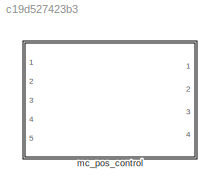
MODEL slx_c19d527423b3
KIND model
CONFIG AbsTol = auto
CONFIG EnableMultiTasking = off
CONFIG FixedStep = auto
CONFIG MaxStep = auto
CONFIG MinStep = auto
CONFIG RelTol = 1e-3
CONFIG SampleTimeConstraint = Unconstrained
CONFIG SolverName = VariableStepAuto
CONFIG StartTime = 0.0
CONFIG StopTime = 10.0
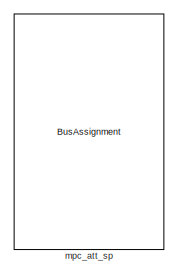
[diagram: mc_pos_control - part 1/6, top center region]
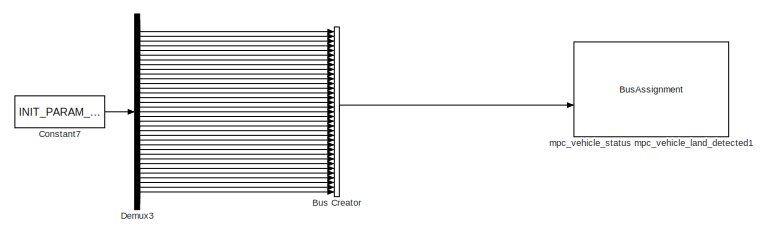
[diagram: mc_pos_control - part 2/6, middle left region]
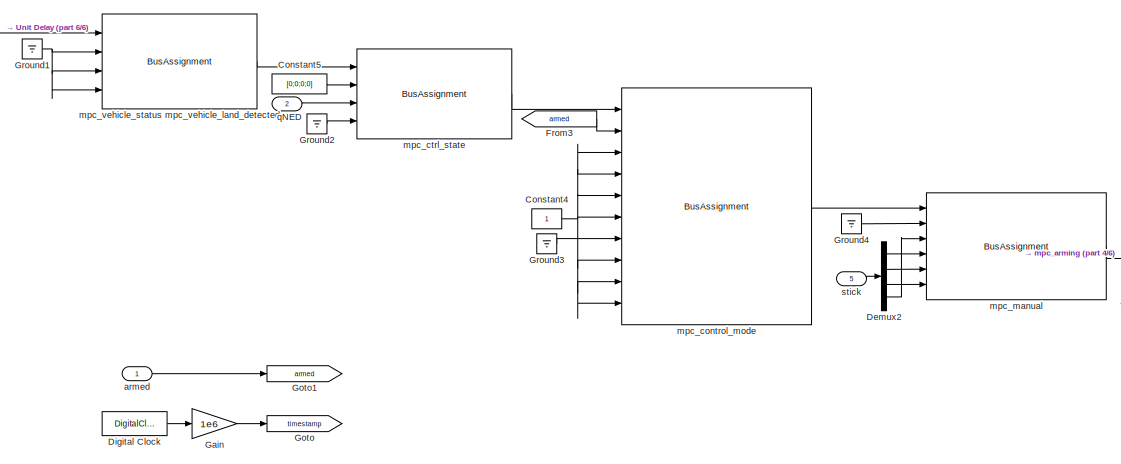
[diagram: mc_pos_control - part 3/6, middle left region]
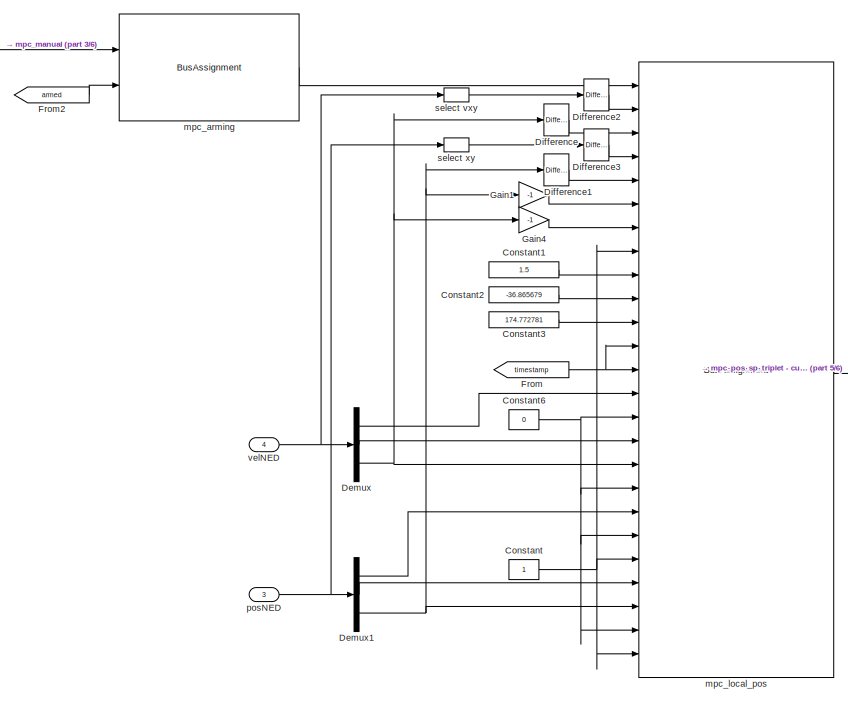
[diagram: mc_pos_control - part 4/6, central region]
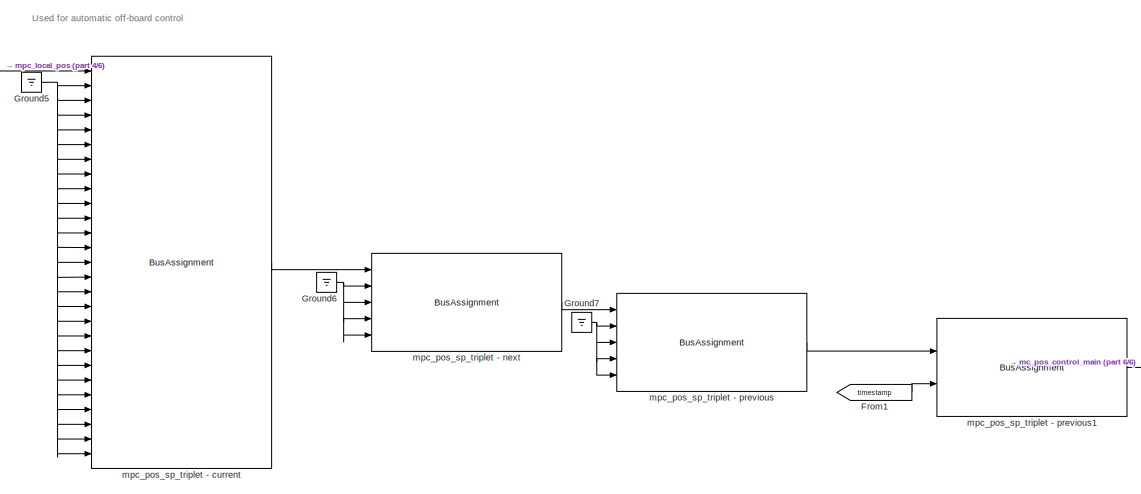
[diagram: mc_pos_control - part 5/6, bottom right region]
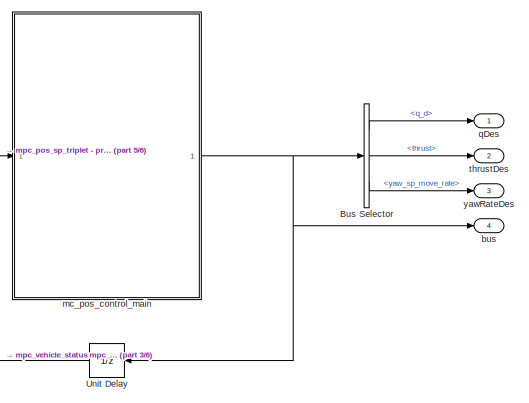
[diagram: mc_pos_control - part 6/6, bottom right region]
BLOCK [SubSystem] mc_pos_control
  AncestorBlock = Px4Library/mc_pos_control
  Ports = [5, 4]
  RequestExecContextInheritance = off
BLOCK [BusCreator] mc_pos_control/Bus Creator
  Commented = on
  DisplayOption = bar
  InheritFromInputs = on
  Inputs = 35
  OutDataTypeStr = Bus: mpc_param_find
  Ports = [35, 1]
BLOCK [BusSelector] mc_pos_control/Bus Selector
  OutputSignals = mpc_att_sp.q_d,mpc_att_sp.thrust,mpc_att_sp.yaw_sp_move_rate
  Ports = [1, 3]
BLOCK [Constant] mc_pos_control/Constant
  SampleTime = MPC_SAMPLING_PERIOD
BLOCK [Constant] mc_pos_control/Constant1
  SampleTime = MPC_SAMPLING_PERIOD
  Value = 1.5
BLOCK [Constant] mc_pos_control/Constant2
  SampleTime = MPC_SAMPLING_PERIOD
  Value = -36.865679
BLOCK [Constant] mc_pos_control/Constant3
  SampleTime = MPC_SAMPLING_PERIOD
  Value = 174.772781
BLOCK [Constant] mc_pos_control/Constant4
BLOCK [Constant] mc_pos_control/Constant5
  Value = [0;0;0;0]
BLOCK [Constant] mc_pos_control/Constant6
  SampleTime = MPC_SAMPLING_PERIOD
  Value = 0
BLOCK [Constant] mc_pos_control/Constant7
  Commented = on
  Value = INIT_PARAM_VECTOR
BLOCK [Demux] mc_pos_control/Demux
  Outputs = 3
  Ports = [1, 3]
BLOCK [Demux] mc_pos_control/Demux1
  Outputs = 3
  Ports = [1, 3]
BLOCK [Demux] mc_pos_control/Demux2
  Ports = [1, 4]
BLOCK [Demux] mc_pos_control/Demux3
  Commented = on
  Outputs = 35
  Ports = [1, 35]
BLOCK [Reference] mc_pos_control/Difference  REF=simulink/Discrete/Difference
  Ports = [1, 1]
  SourceBlock = simulink/Discrete/Difference
  SourceProductBaseCode = SL
  SourceType = Difference
BLOCK [Reference] mc_pos_control/Difference1  REF=simulink/Discrete/Difference
  Ports = [1, 1]
  SourceBlock = simulink/Discrete/Difference
  SourceProductBaseCode = SL
  SourceType = Difference
BLOCK [Reference] mc_pos_control/Difference2  REF=simulink/Discrete/Difference
  Ports = [1, 1]
  SourceBlock = simulink/Discrete/Difference
  SourceProductBaseCode = SL
  SourceType = Difference
BLOCK [Reference] mc_pos_control/Difference3  REF=simulink/Discrete/Difference
  Ports = [1, 1]
  SourceBlock = simulink/Discrete/Difference
  SourceProductBaseCode = SL
  SourceType = Difference
BLOCK [DigitalClock] mc_pos_control/Digital Clock
  SampleTime = MPC_SAMPLING_PERIOD
BLOCK [From] mc_pos_control/From
  GotoTag = timestamp
BLOCK [From] mc_pos_control/From1
  GotoTag = timestamp
BLOCK [From] mc_pos_control/From2
  GotoTag = armed
BLOCK [From] mc_pos_control/From3
  GotoTag = armed
BLOCK [Gain] mc_pos_control/Gain
  Gain = 1e6
BLOCK [Gain] mc_pos_control/Gain1
  Gain = -1
BLOCK [Gain] mc_pos_control/Gain4
  Gain = -1
BLOCK [Goto] mc_pos_control/Goto
  GotoTag = timestamp
BLOCK [Goto] mc_pos_control/Goto1
  GotoTag = armed
BLOCK [Ground] mc_pos_control/Ground1
BLOCK [Ground] mc_pos_control/Ground2
BLOCK [Ground] mc_pos_control/Ground3
BLOCK [Ground] mc_pos_control/Ground4
BLOCK [Ground] mc_pos_control/Ground5
BLOCK [Ground] mc_pos_control/Ground6
BLOCK [Ground] mc_pos_control/Ground7
BLOCK [UnitDelay] mc_pos_control/Unit Delay
  HasFrameUpgradeWarning = on
  InitialCondition = MPC_INIT_SELF
  SampleTime = MPC_SAMPLING_PERIOD
BLOCK [Inport] mc_pos_control/armed
  PortDimensions = 1
  SampleTime = MPC_SAMPLING_PERIOD
BLOCK [Outport] mc_pos_control/bus
  Port = 4
  SampleTime = MPC_SAMPLING_PERIOD
  VectorParamsAs1DForOutWhenUnconnected = off
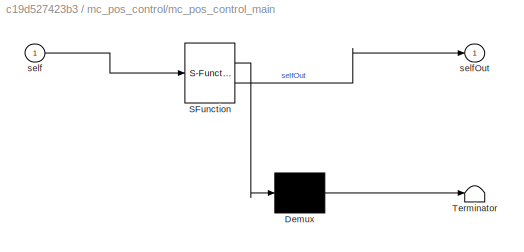
BLOCK [SubSystem] mc_pos_control/mc_pos_control_main
  ErrorFcn = Stateflow.Translate.translate
  PermitHierarchicalResolution = ExplicitOnly
  Ports = [1, 1]
  RequestExecContextInheritance = off
  SFBlockType = MATLAB Function
  SystemSampleTime = MPC_SAMPLING_PERIOD
  TreatAsAtomicUnit = on
BLOCK [Demux] mc_pos_control/mc_pos_control_main/ Demux 
  Outputs = 1
  Ports = [1, 1]
BLOCK [S-Function] mc_pos_control/mc_pos_control_main/ SFunction 
  EnableBusSupport = on
  FunctionName = sf_sfun
  PortCounts = [1 2]
  Ports = [1, 2]
  SFcnIsStateOwnerBlock = off
  SFunctionDeploymentMode = off
  Tag = Stateflow S-Function 4
BLOCK [Terminator] mc_pos_control/mc_pos_control_main/ Terminator 
BLOCK [Inport] mc_pos_control/mc_pos_control_main/self
BLOCK [Outport] mc_pos_control/mc_pos_control_main/selfOut
  VectorParamsAs1DForOutWhenUnconnected = off
BLOCK [BusAssignment] mc_pos_control/mpc_arming
  AssignedSignals = mpc_arming.armed
  Ports = [2, 1]
BLOCK [BusAssignment] mc_pos_control/mpc_att_sp
  AssignedSignals = mpc_att_sp.disable_mc_yaw_control,mpc_att_sp.landing_gear,mpc_att_sp.pitch_body,mpc_att_sp.q_d,mpc_att_sp.q_d_valid,mpc_att_sp.roll_body,mpc_att_sp.thrust,mpc_att_sp.timestamp,mpc_att_sp.yaw_body,mpc_att_sp.yaw_sp_move_rate
  Commented = on
  Ports = [11, 1]
BLOCK [BusAssignment] mc_pos_control/mpc_control_mode
  AssignedSignals = mpc_control_mode.flag_armed,mpc_control_mode.flag_control_acceleration_enabled,mpc_control_mode.flag_control_altitude_enabled,mpc_control_mode.flag_control_climb_rate_enabled,mpc_control_mode.flag_control_manual_enabled,mpc_control_mode.flag_control_offboard_enabled,mpc_control_mode.flag_control_position_enabled,mpc_control_mode.flag_control_velocity_enabled,mpc_control_mode.flag_control_attitude_...<+7ch>
  Ports = [10, 1]
BLOCK [BusAssignment] mc_pos_control/mpc_ctrl_state
  AssignedSignals = mpc_ctrl_state.delta_q_reset,mpc_ctrl_state.q,mpc_ctrl_state.quat_reset_counter
  Ports = [4, 1]
BLOCK [BusAssignment] mc_pos_control/mpc_local_pos
  AssignedSignals = mpc_local_pos.delta_vxy,mpc_local_pos.delta_vz,mpc_local_pos.delta_xy,mpc_local_pos.delta_z,mpc_local_pos.dist_bottom,mpc_local_pos.dist_bottom_rate,mpc_local_pos.dist_bottom_valid,mpc_local_pos.ref_alt,mpc_local_pos.ref_lat,mpc_local_pos.ref_lon,mpc_local_pos.ref_timestamp,mpc_local_pos.timestamp,mpc_local_pos.vx,mpc_local_pos.vxy_reset_counter,mpc_local_pos.vy,mpc_local_pos.vz,mpc_local_pos.vz_r...<+166ch>
  Ports = [25, 1]
BLOCK [BusAssignment] mc_pos_control/mpc_manual
  AssignedSignals = mpc_manual.gear_switch,mpc_manual.r,mpc_manual.x,mpc_manual.y,mpc_manual.z
  Ports = [6, 1]
BLOCK [BusAssignment] mc_pos_control/mpc_pos_sp_triplet - current
  AssignedSignals = mpc_pos_sp_triplet.mpc_current.a_x,mpc_pos_sp_triplet.mpc_current.a_y,mpc_pos_sp_triplet.mpc_current.a_z,mpc_pos_sp_triplet.mpc_current.acceleration_valid,mpc_pos_sp_triplet.mpc_current.acceptance_radius,mpc_pos_sp_triplet.mpc_current.alt,mpc_pos_sp_triplet.mpc_current.alt_valid,mpc_pos_sp_triplet.mpc_current.cruising_speed,mpc_pos_sp_triplet.mpc_current.disable_mc_yaw_control,mpc_pos_sp_triplet.m...<+623ch>
  Ports = [27, 1]
BLOCK [BusAssignment] mc_pos_control/mpc_pos_sp_triplet - next
  AssignedSignals = mpc_pos_sp_triplet.mpc_next.alt,mpc_pos_sp_triplet.mpc_next.lat,mpc_pos_sp_triplet.mpc_next.lon,mpc_pos_sp_triplet.mpc_next.valid
  Ports = [5, 1]
BLOCK [BusAssignment] mc_pos_control/mpc_pos_sp_triplet - previous
  AssignedSignals = mpc_pos_sp_triplet.mpc_previous.alt,mpc_pos_sp_triplet.mpc_previous.lat,mpc_pos_sp_triplet.mpc_previous.lon,mpc_pos_sp_triplet.mpc_previous.valid
  Ports = [5, 1]
BLOCK [BusAssignment] mc_pos_control/mpc_pos_sp_triplet - previous1
  AssignedSignals = mpc_hrt_absolute_time
  Ports = [2, 1]
BLOCK [BusAssignment] mc_pos_control/mpc_vehicle_status mpc_vehicle_land_detected
  AssignedSignals = mpc_vehicle_status.is_rotary_wing,mpc_vehicle_status.is_vtol,mpc_vehicle_land_detected.landed
  Ports = [4, 1]
BLOCK [BusAssignment] mc_pos_control/mpc_vehicle_status mpc_vehicle_land_detected1
  AssignedSignals = mpc_param_find
  Commented = on
  Ports = [2, 1]
BLOCK [Inport] mc_pos_control/posNED
  Port = 3
  PortDimensions = 3
  SampleTime = MPC_SAMPLING_PERIOD
BLOCK [Outport] mc_pos_control/qDes
  PortDimensions = 4
  SampleTime = MPC_SAMPLING_PERIOD
  VectorParamsAs1DForOutWhenUnconnected = off
BLOCK [Inport] mc_pos_control/qNED
  Port = 2
  PortDimensions = 4
  SampleTime = MPC_SAMPLING_PERIOD
BLOCK [Selector] mc_pos_control/select vxy
  IndexOptions = Index vector (dialog)
  Indices = [1 2]
  InputPortWidth = 3
  OutputSizes = 1
  Ports = [1, 1]
BLOCK [Selector] mc_pos_control/select xy
  IndexOptions = Index vector (dialog)
  Indices = [1 2]
  InputPortWidth = 3
  OutputSizes = 1
  Ports = [1, 1]
BLOCK [Inport] mc_pos_control/stick
  Port = 5
  PortDimensions = 4
  SampleTime = MPC_SAMPLING_PERIOD
BLOCK [Outport] mc_pos_control/thrustDes
  Port = 2
  PortDimensions = 1
  SampleTime = MPC_SAMPLING_PERIOD
  VectorParamsAs1DForOutWhenUnconnected = off
BLOCK [Inport] mc_pos_control/velNED
  Port = 4
  PortDimensions = 3
  SampleTime = MPC_SAMPLING_PERIOD
BLOCK [Outport] mc_pos_control/yawRateDes
  Port = 3
  PortDimensions = 1
  SampleTime = MPC_SAMPLING_PERIOD
  VectorParamsAs1DForOutWhenUnconnected = off
ANNOTATION mc_pos_control: Used for automatic off-board control
CHART mc_pos_control/mc_pos_control_main states=1 transitions=1
  STATE_LABEL 'eML_blk_kernel()'
  STATE_LABEL 'SCRIPT:\nfunction selfOut = mc_pos_control( self )\n% MC_POS_CONTROL\n% /****************************************************************************\n% \n%   <copyright redacted>\n% \n% Redistribution and use in source and binary forms, with or without\n% modification, are permitted provided that the following conditions\n% are met:\n% \n% 1. Redistributions o...<+3593ch>'
CHART  states=0 transitions=0
